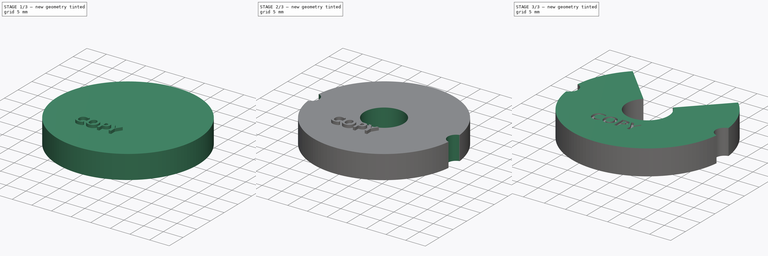
[diagram: build sequence overview — one tinted view per stage of 3, left to right]
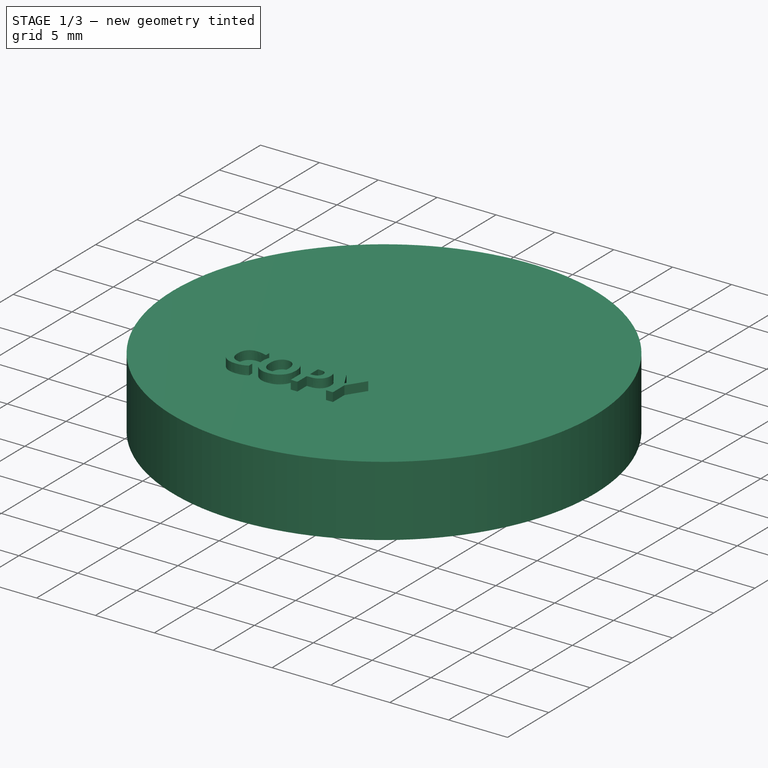
[diagram: stage 1 of 3 — iso view after this stage's code; geometry added in this stage tinted green]
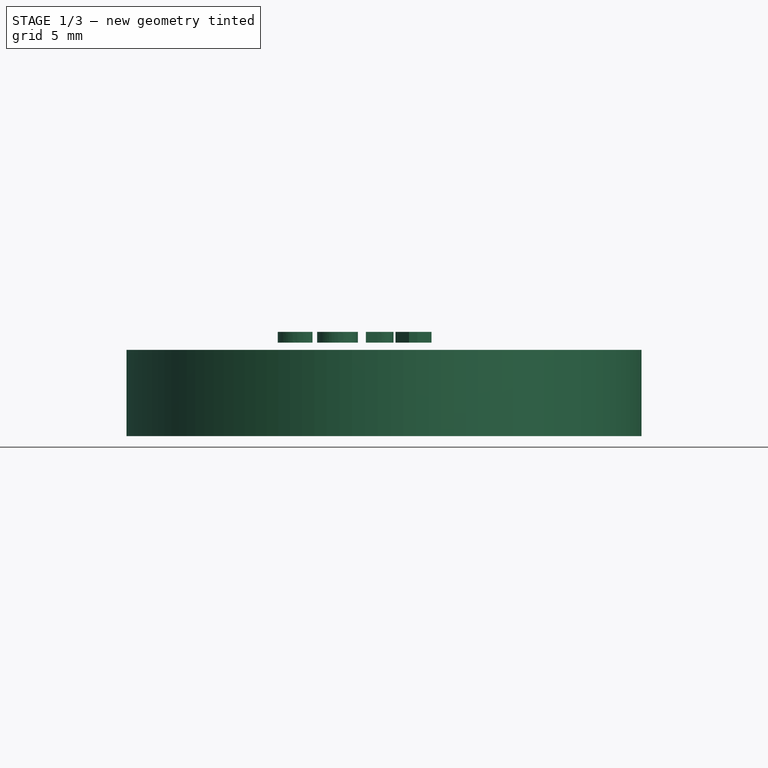
[diagram: stage 1 of 3 — front view after this stage's code; geometry added in this stage tinted green]
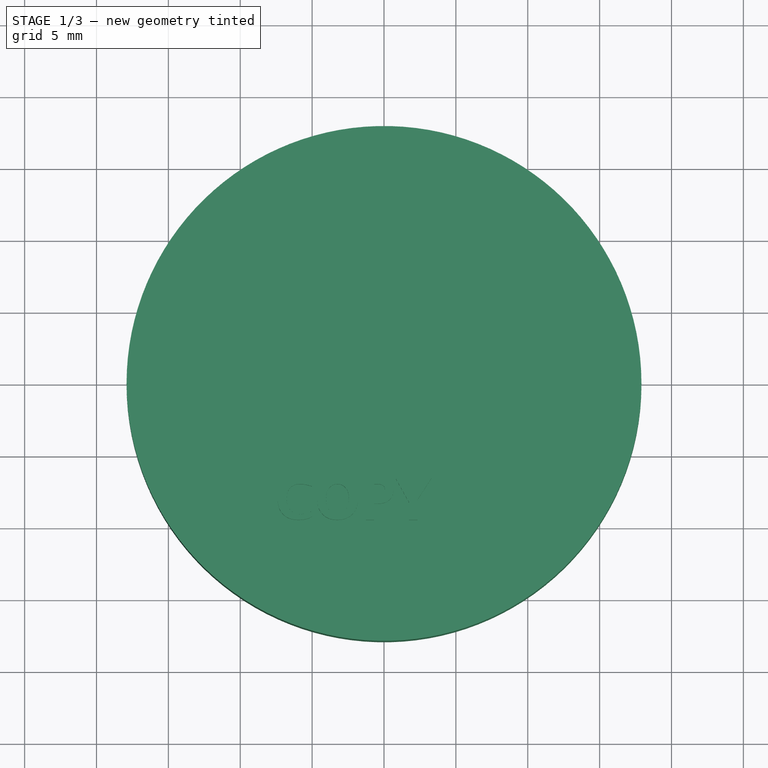
[diagram: stage 1 of 3 — top view after this stage's code; geometry added in this stage tinted green]
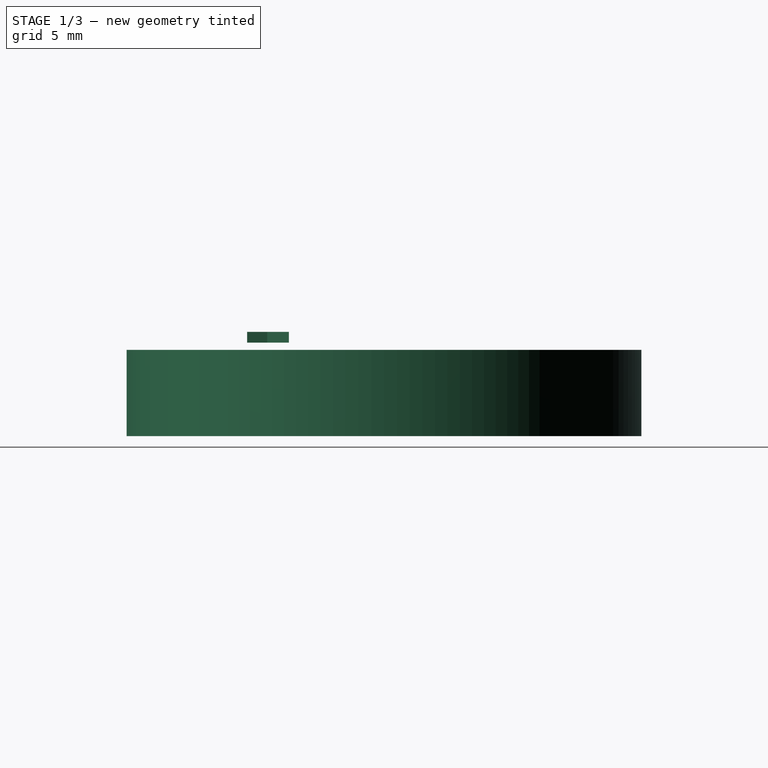
[diagram: stage 1 of 3 — right view after this stage's code; geometry added in this stage tinted green]
FCSTD DOCUMENT  (FreeCAD 0.18R4 (GitTag))
Label: Spacer 6 -copy
License: All rights reserved
LicenseURL: http://en.wikipedia.org/wiki/All_rights_reserved
objects: Sketcher::SketchObject×4, PartDesign::Pocket×2, PartDesign::Pad×1, PartDesign::Hole×1, PartDesign::Body×1, Part::Part2DObjectPython×1, Part::Extrusion×1, Part::Cut×1
note: 16 computed .brp shape members not serialized (recipe doc carries the construction recipe); baked Part::Feature solids carry a one-line shape summary decoded from their .brp

FEATURE [Sketcher::SketchObject] Sketch045
  MapMode = 5
  Placement = pos=(0,0,8) rot=(0,0,1;0rad)
  sketch-geometry (1):
    g0: Circle CenterX=0 CenterY=0 CenterZ=0 NormalX=0 NormalY=0 NormalZ=1 AngleXU=0 Radius=2.71947
  constraints (1):
    c: Coincident(g0,g-1)
FEATURE [Sketcher::SketchObject] Sketch047
  MapMode = 5
  Support = -> [XY_Plane011]
  sketch-geometry (1):
    g0: Circle CenterX=0 CenterY=0 CenterZ=0 NormalX=0 NormalY=0 NormalZ=1 AngleXU=0 Radius=17.9106
  constraints (1):
    c: Coincident(g0,g-1)
FEATURE [PartDesign::Pad] Pad014
  Length = 6
  Length2 = 100
  Profile = -> Sketch047
  Type = 0
FEATURE [PartDesign::Body] Body011  label="Spacer 6mm"
  Group = -> [Sketch047,Pad014,Sketch045,Hole008,Sketch046,Pocket015,Sketch048,Pocket016]
  Origin = -> Origin011
  Placement = pos=(0,0,1) rot=(0,0,1;0rad)
  Tip = -> Pocket016
FEATURE [Part::Part2DObjectPython] ShapeString001  # Draft 2D object (typed FeaturePython)
  FontFile = C:/Program Files (x86)/Arduino/java/lib/fonts/LucidaSansDemiBold.ttf
  Placement = pos=(-2.57,0.48,0) rot=(0,0,1;0rad)
  Size = 3
  String = COPY
  Tracking = 0
FEATURE [Part::Extrusion] Extrude
  Base = -> ShapeString001
  Dir = (0,0,1)
  DirMode = 2
  FaceMakerClass = Part::FaceMakerBullseye
  LengthFwd = 0.75
  LengthRev = 0
  Placement = pos=(-5,-10,6.5) rot=(0,0,1;0rad)
  Solid = false
  Symmetric = false
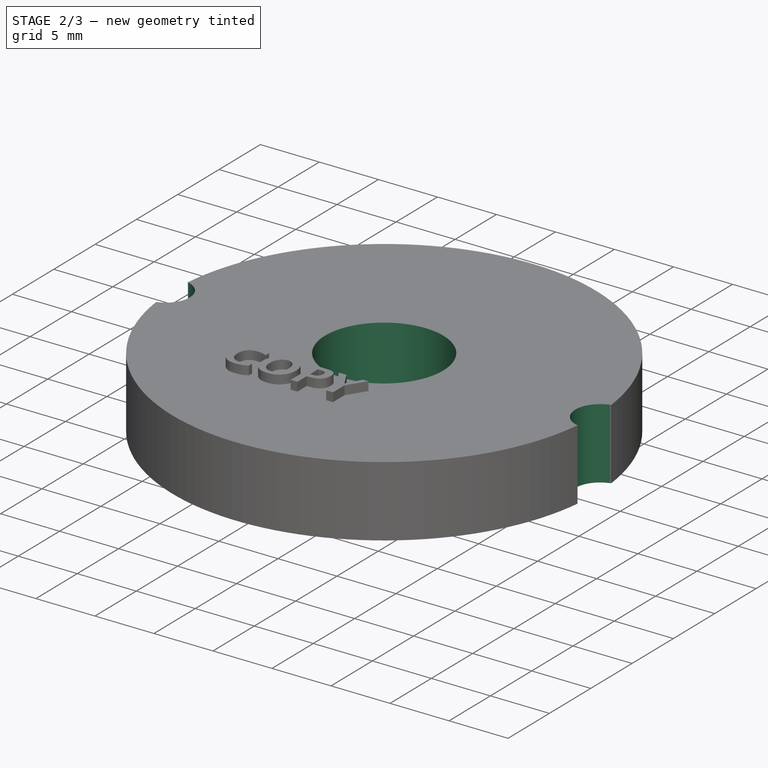
[diagram: stage 2 of 3 — iso view after this stage's code; geometry added in this stage tinted green]
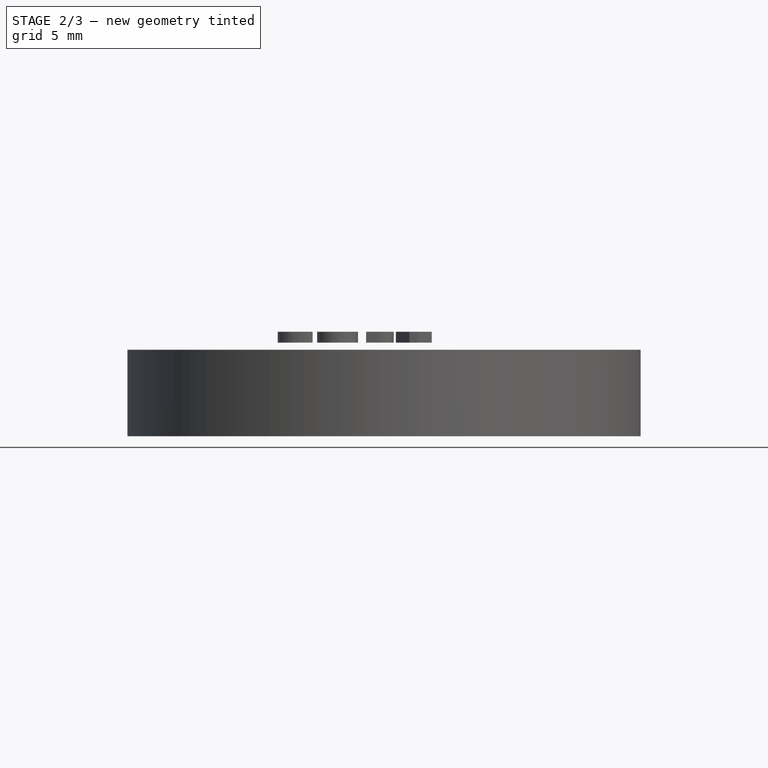
[diagram: stage 2 of 3 — front view after this stage's code; geometry added in this stage tinted green]
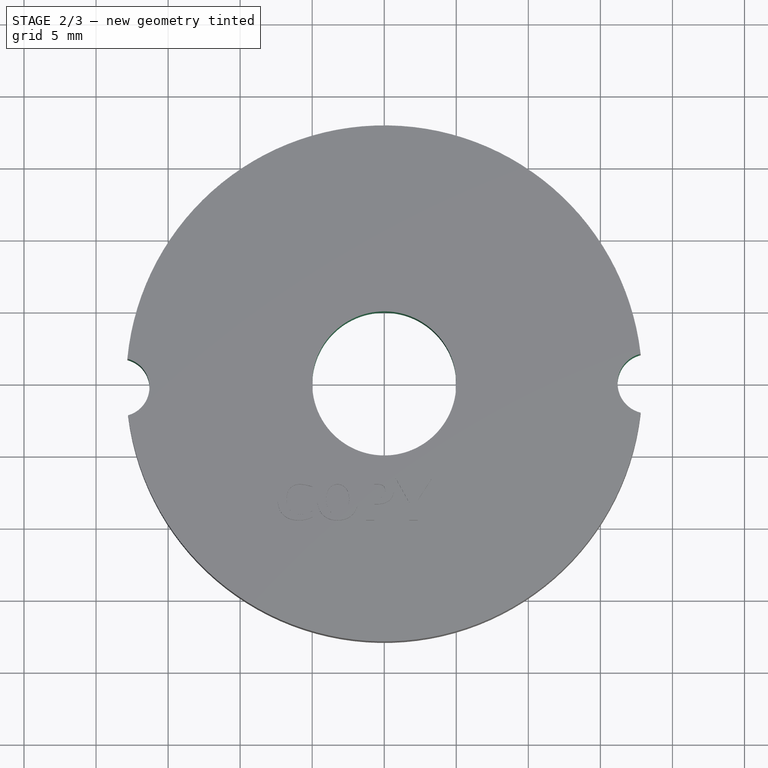
[diagram: stage 2 of 3 — top view after this stage's code; geometry added in this stage tinted green]
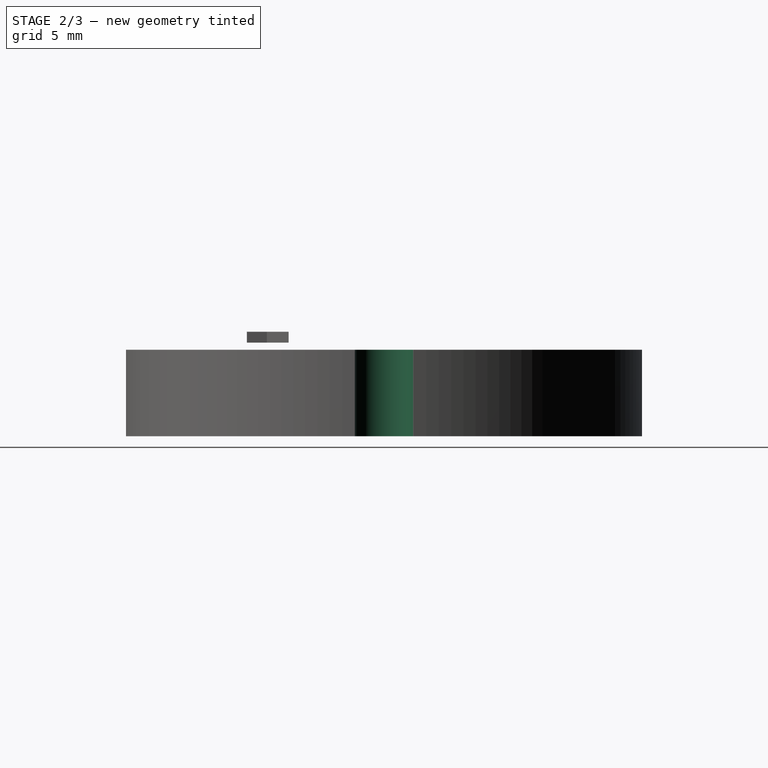
[diagram: stage 2 of 3 — right view after this stage's code; geometry added in this stage tinted green]
FEATURE [PartDesign::Hole] Hole008
  BaseFeature = -> Pad014
  Depth = 25
  DepthType = 1
  Diameter = 10
  DrillPoint = 1
  DrillPointAngle = 118
  HoleCutCountersinkAngle = 90
  HoleCutDepth = 0
  HoleCutDiameter = 0
  HoleCutType = 0
  ModelActualThread = false
  Profile = -> Sketch045
  Tapered = false
  TaperedAngle = 90
  ThreadAngle = 0
  ThreadClass = 0
  ThreadCutOffInner = 0
  ThreadCutOffOuter = 0
  ThreadDirection = 0
  ThreadFit = 0
  ThreadPitch = 0
  ThreadSize = 0
  ThreadType = 0
  Threaded = false
FEATURE [Sketcher::SketchObject] Sketch046
  MapMode = 5
  Placement = pos=(0,0,6) rot=(0,0,1;0rad)
  Support = -> [Hole008]
  sketch-geometry (6):
    g0: ArcOfCircle CenterX=-18.3188 CenterY=-0.257262 CenterZ=0 NormalX=0 NormalY=0 NormalZ=1 AngleXU=0 Radius=2.02569 StartAngle=4.83236 EndAngle=7.74167
    g1: ArcOfCircle CenterX=18.2937 CenterY=0.0118605 CenterZ=0 NormalX=0 NormalY=0 NormalZ=1 AngleXU=0 Radius=2.09983 StartAngle=1.73254 EndAngle=4.58696
    g2: LineSegment StartX=-18.0918 StartY=1.75566 StartZ=0 EndX=-19.1245 EndY=0.01131 EndZ=0
    g3: LineSegment StartX=-19.1245 StartY=0.01131 StartZ=0 EndX=-18.0764 EndY=-2.26839 EndZ=0
    g4: LineSegment StartX=17.9556 StartY=2.08428 StartZ=0 EndX=19.3739 EndY=-0.05719 EndZ=0
    g5: LineSegment StartX=19.3739 StartY=-0.05719 StartZ=0 EndX=18.031 EndY=-2.07147 EndZ=0
  constraints (6):
    c: Coincident(g0,g2)
    c: Coincident(g2,g3)
    c: Coincident(g3,g0)
    c: Coincident(g4,g5)
    c: Coincident(g1,g4)
    c: Coincident(g1,g5)
FEATURE [PartDesign::Pocket] Pocket015
  BaseFeature = -> Hole008
  Length = 6
  Length2 = 100
  Profile = -> Sketch046
  Type = 0
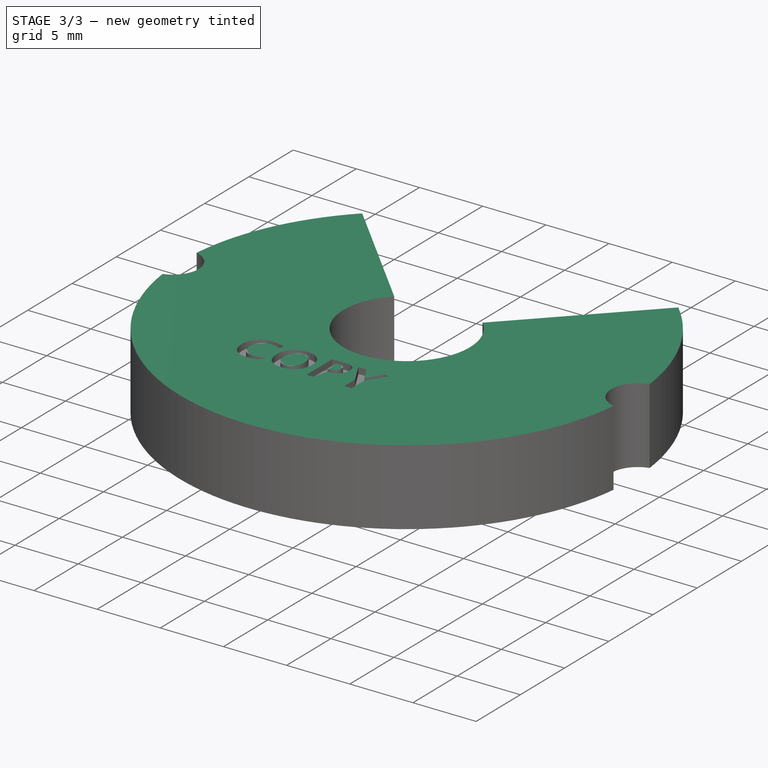
[diagram: stage 3 of 3 — iso view after this stage's code; geometry added in this stage tinted green]
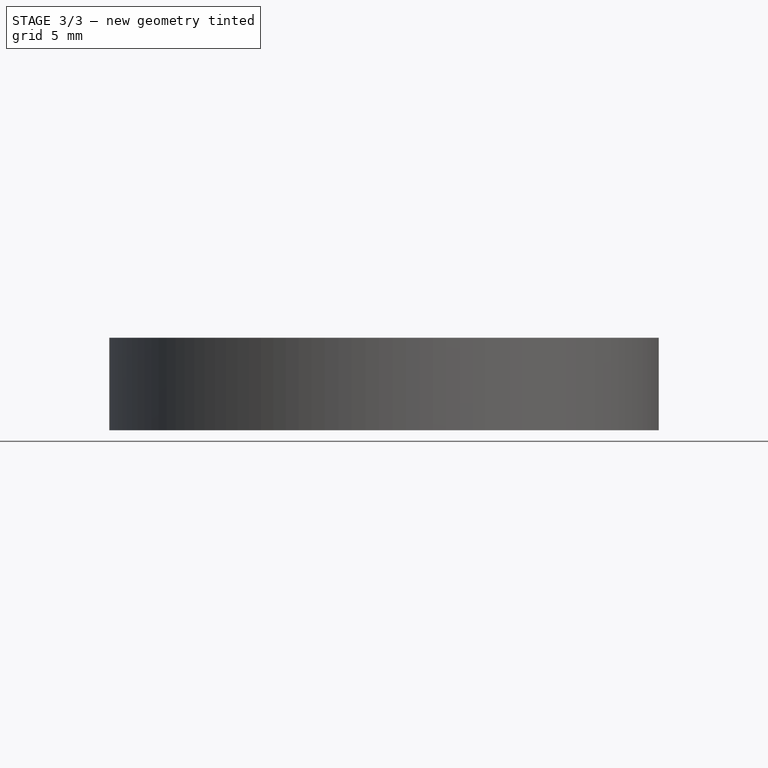
[diagram: stage 3 of 3 — front view after this stage's code; geometry added in this stage tinted green]
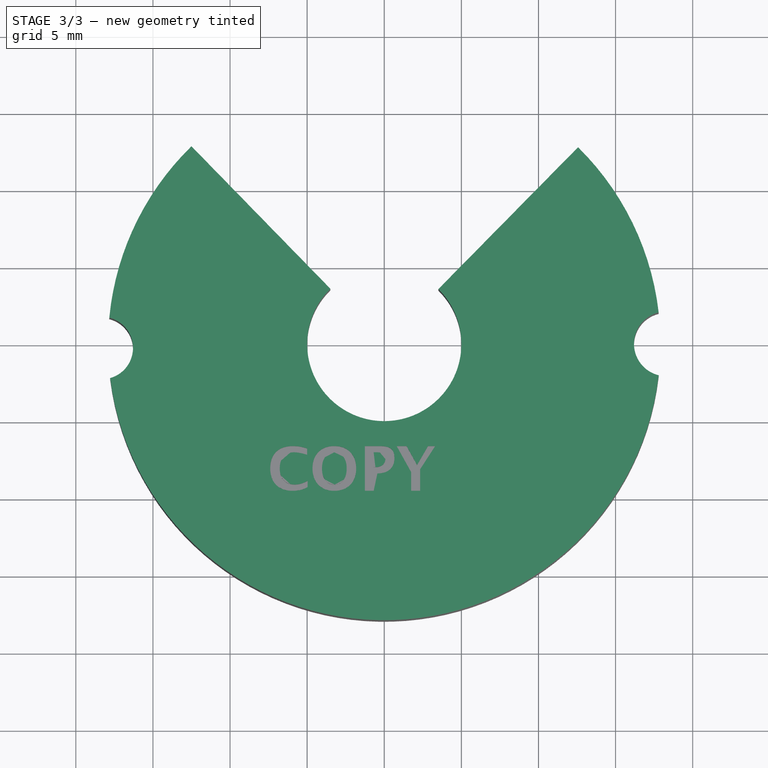
[diagram: stage 3 of 3 — top view after this stage's code; geometry added in this stage tinted green]
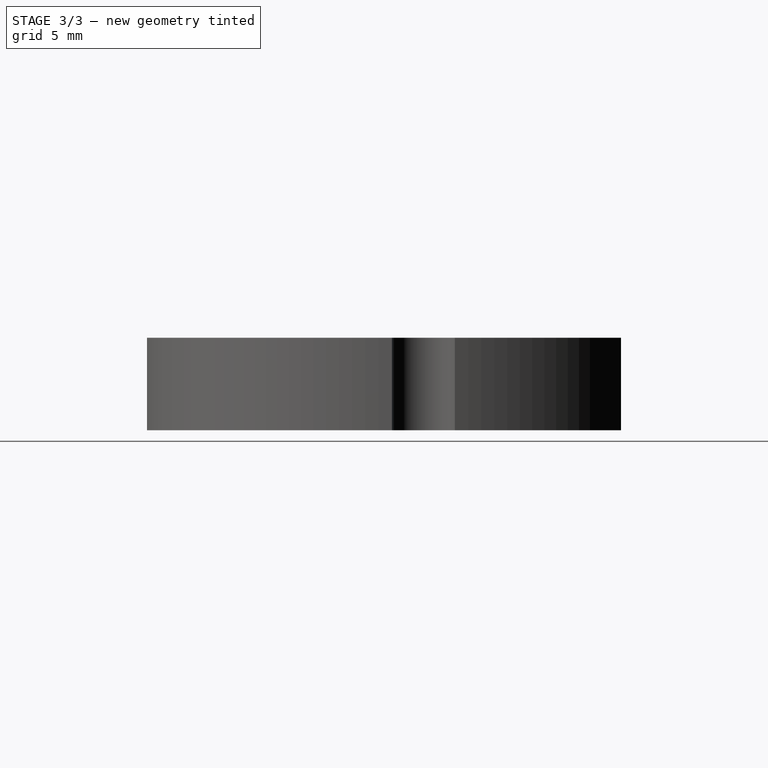
[diagram: stage 3 of 3 — right view after this stage's code; geometry added in this stage tinted green]
FEATURE [Sketcher::SketchObject] Sketch048
  MapMode = 5
  Placement = pos=(0,0,6) rot=(0,0,1;0rad)
  Support = -> [Pocket015]
  sketch-geometry (3):
    g0: ArcOfCircle CenterX=0 CenterY=0 CenterZ=0 NormalX=0 NormalY=0 NormalZ=1 AngleXU=0 Radius=19.7714 StartAngle=0.793047 EndAngle=2.34349
    g1: LineSegment StartX=0 StartY=0 StartZ=0 EndX=-13.8017 EndY=14.157 EndZ=0
    g2: LineSegment StartX=0 StartY=0 StartZ=0 EndX=13.8731 EndY=14.087 EndZ=0
  constraints (4):
    c: Coincident(g0,g-1)
    c: Coincident(g1,g0)
    c: Coincident(g2,g0)
    c: Coincident(g2,g0)
FEATURE [PartDesign::Pocket] Pocket016
  BaseFeature = -> Pocket015
  Length = 5
  Length2 = 100
  Profile = -> Sketch048
  Type = 1
FEATURE [Part::Cut] Cut
  Base = -> Body011
  Tool = -> Extrude
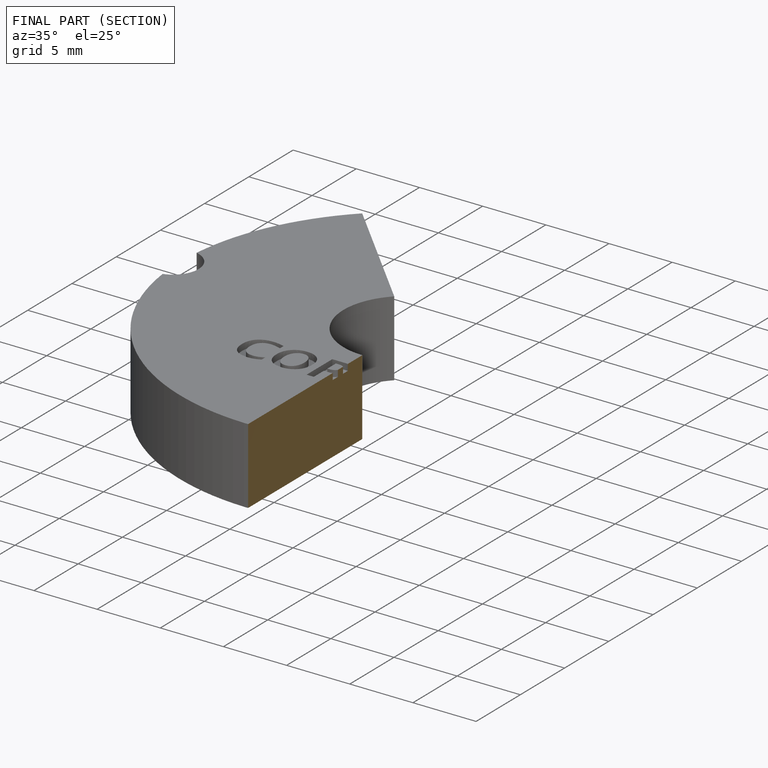
[diagram: finished part — half-section view (interior)]
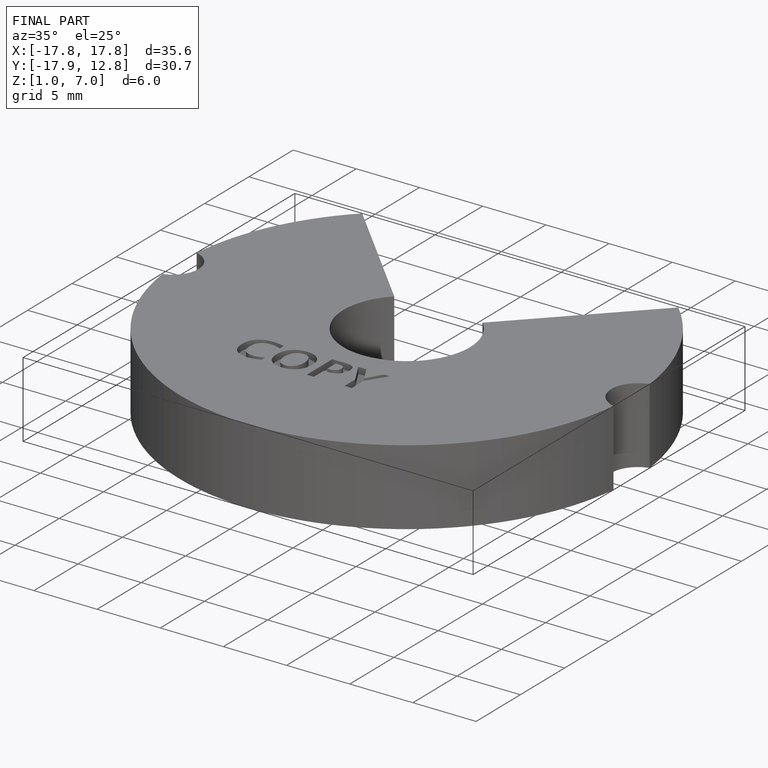
[diagram: finished part — iso view with bounding-box wireframe]
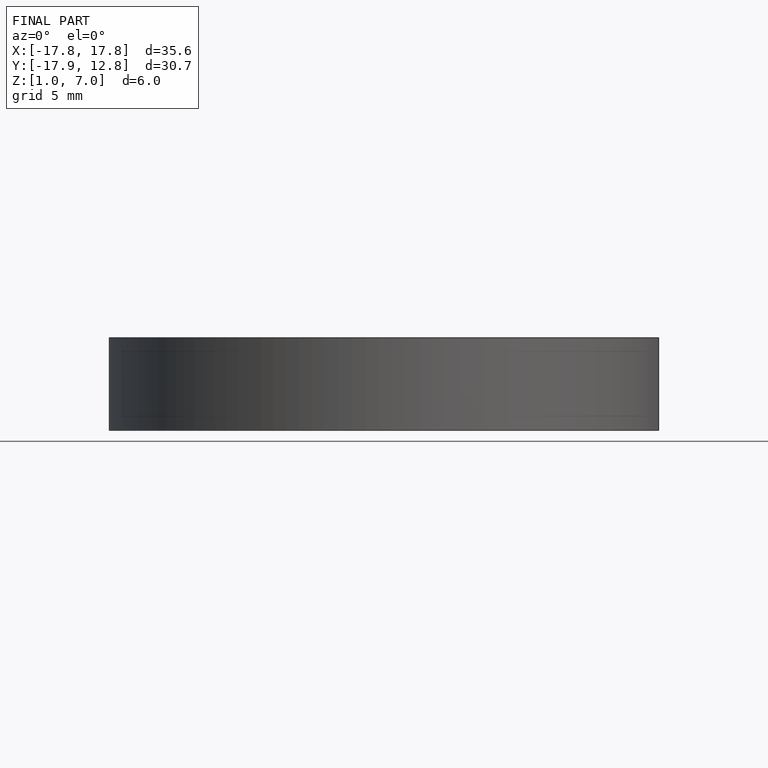
[diagram: finished part — front view with bounding-box wireframe]
